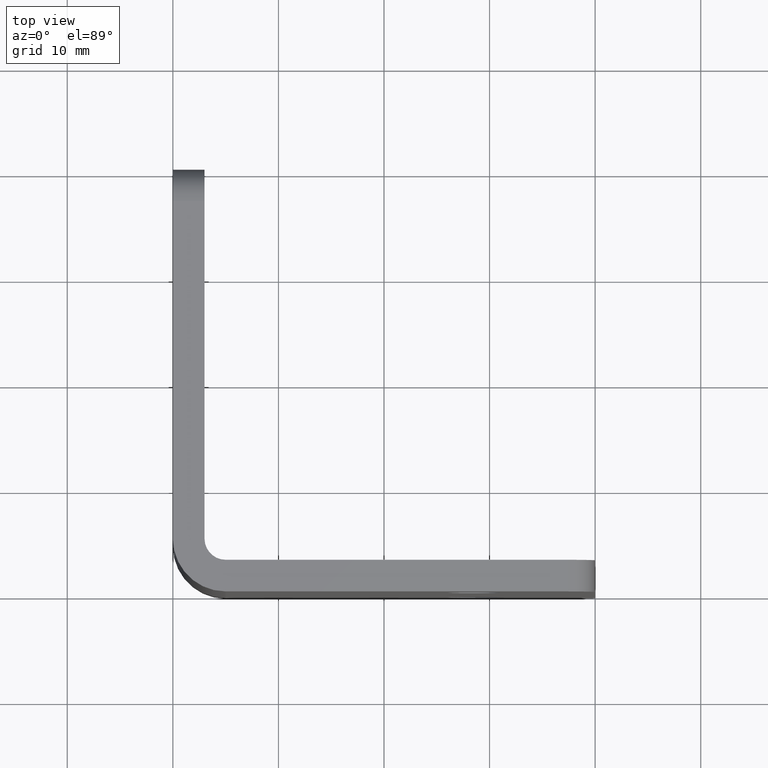
[diagram: clean part render]
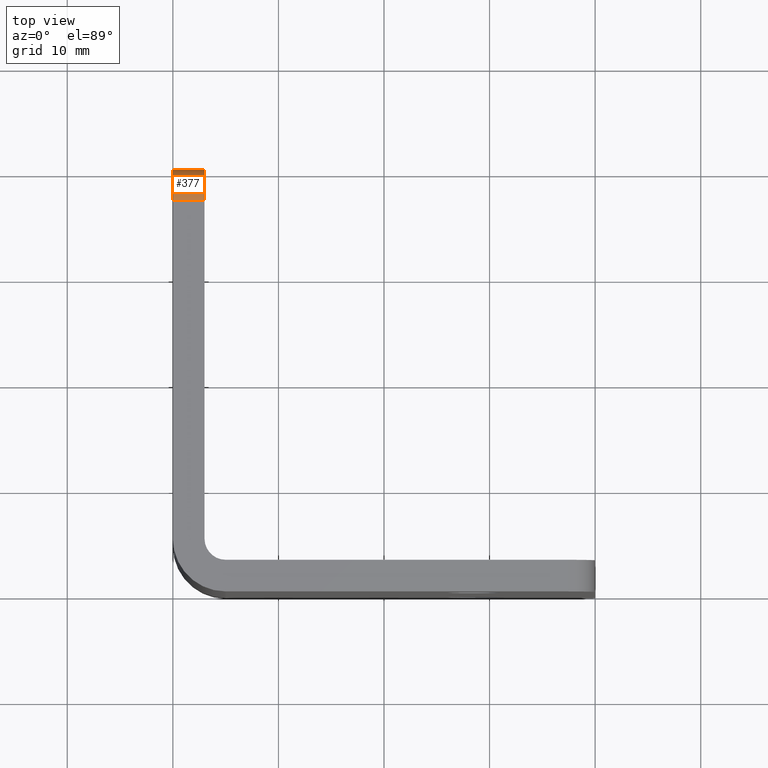
[diagram: same view with one face highlighted and labeled with its STEP entity id]
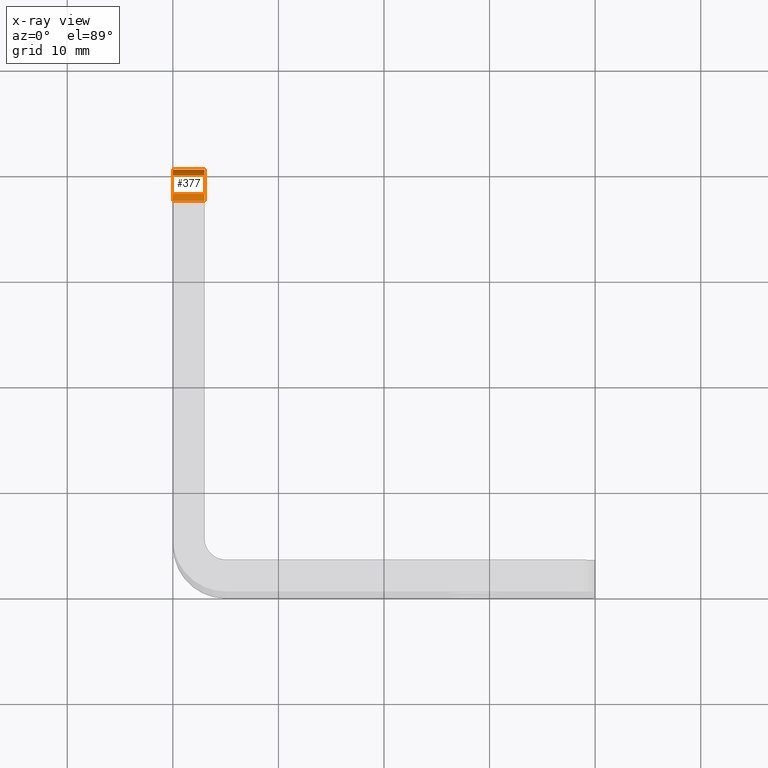
[diagram: x-ray of the same camera — body ghosted, the highlighted face saturated]
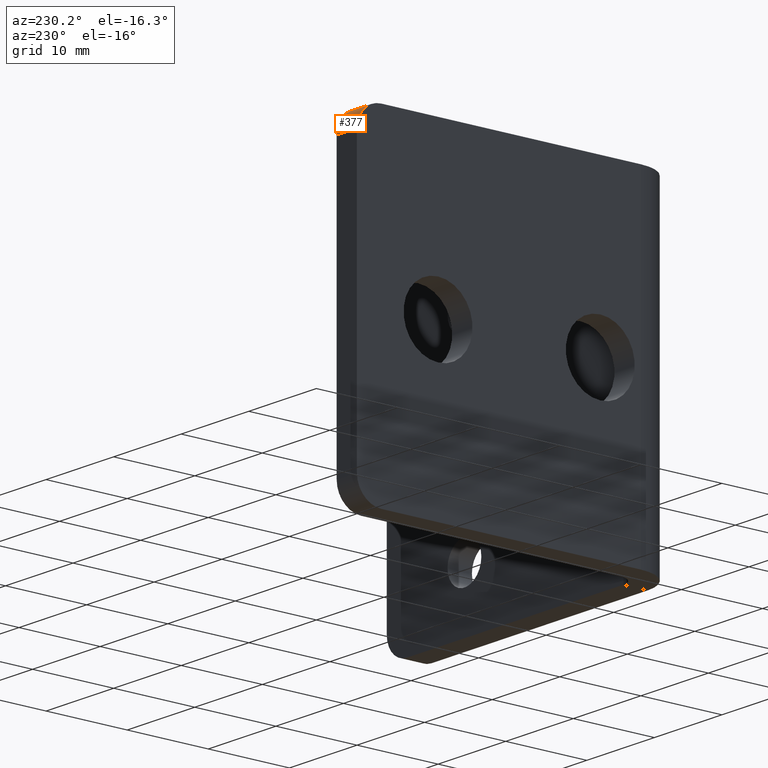
[diagram: same view with one face highlighted and labeled with its STEP entity id]
A machine part, top view. The second image highlights one B-rep face of the part: STEP entity #377.
The next image is the same camera in x-ray: the body ghosted, the highlighted face saturated — about 0% of this face is hidden behind the body in this view.
A second angle (auxiliary view) of the same face is appended — the face is thin or edge-on in the first view.
In plain terms, the highlighted cylindrical surface (edge-blend (fillet) strip) has radius 3 mm, axis along (-1, -0, 0).
Its self-contained STEP definition (entity closure, byte-faithful):
#43=FACE_OUTER_BOUND('',#69,.T.);
#69=EDGE_LOOP('',(#295,#296,#297,#298));
#107=LINE('',#643,#139);
#108=LINE('',#644,#140);
#139=VECTOR('',#520,10.);
#140=VECTOR('',#521,10.);
#159=CIRCLE('',#430,3.);
#162=CIRCLE('',#434,3.);
#191=VERTEX_POINT('',#628);
#192=VERTEX_POINT('',#630);
#196=VERTEX_POINT('',#640);
#197=VERTEX_POINT('',#641);
#229=EDGE_CURVE('',#192,#191,#159,.T.);
#234=EDGE_CURVE('',#196,#197,#162,.T.);
#235=EDGE_CURVE('',#197,#192,#107,.T.);
#236=EDGE_CURVE('',#191,#196,#108,.T.);
#295=ORIENTED_EDGE('',*,*,#234,.T.);
#296=ORIENTED_EDGE('',*,*,#235,.T.);
#297=ORIENTED_EDGE('',*,*,#229,.T.);
#298=ORIENTED_EDGE('',*,*,#236,.T.);
#362=CYLINDRICAL_SURFACE('',#433,3.);
#377=ADVANCED_FACE('',(#43),#362,.T.);
#430=AXIS2_PLACEMENT_3D('',#631,#508,#509);
#433=AXIS2_PLACEMENT_3D('',#639,#516,#517);
#434=AXIS2_PLACEMENT_3D('',#642,#518,#519);
#508=DIRECTION('center_axis',(-1.,-5.00406247868089E-17,1.66533453693773E-16));
#509=DIRECTION('ref_axis',(0.,0.707106781186549,0.707106781186546));
#516=DIRECTION('center_axis',(-1.,-6.12323399573677E-17,1.66533453693773E-16));
#517=DIRECTION('ref_axis',(0.,0.707106781186549,0.707106781186546));
#518=DIRECTION('center_axis',(1.,5.0040624786809E-17,-1.66533453693773E-16));
#519=DIRECTION('ref_axis',(0.,0.707106781186549,0.707106781186546));
#520=DIRECTION('',(1.,6.12323399573677E-17,-1.66533453693773E-16));
#521=DIRECTION('',(-1.,-6.12323399573677E-17,1.66533453693773E-16));
#628=CARTESIAN_POINT('',(3.,40.,17.));
#630=CARTESIAN_POINT('',(3.00000000000001,37.,20.));
#631=CARTESIAN_POINT('Origin',(3.,37.,17.));
#639=CARTESIAN_POINT('Origin',(3.,37.,17.));
#640=CARTESIAN_POINT('',(3.4503267404782E-15,40.,17.));
#641=CARTESIAN_POINT('',(7.53984064776471E-15,37.,20.));
#642=CARTESIAN_POINT('Origin',(3.88578058618805E-15,37.,17.));
#643=CARTESIAN_POINT('',(3.,37.,20.));
#644=CARTESIAN_POINT('',(3.,40.,17.));